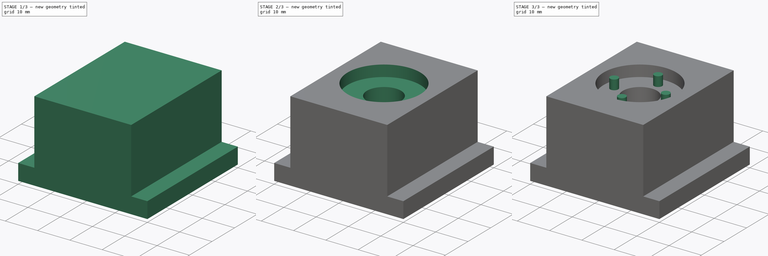
[diagram: build sequence overview — one tinted view per stage of 3, left to right]
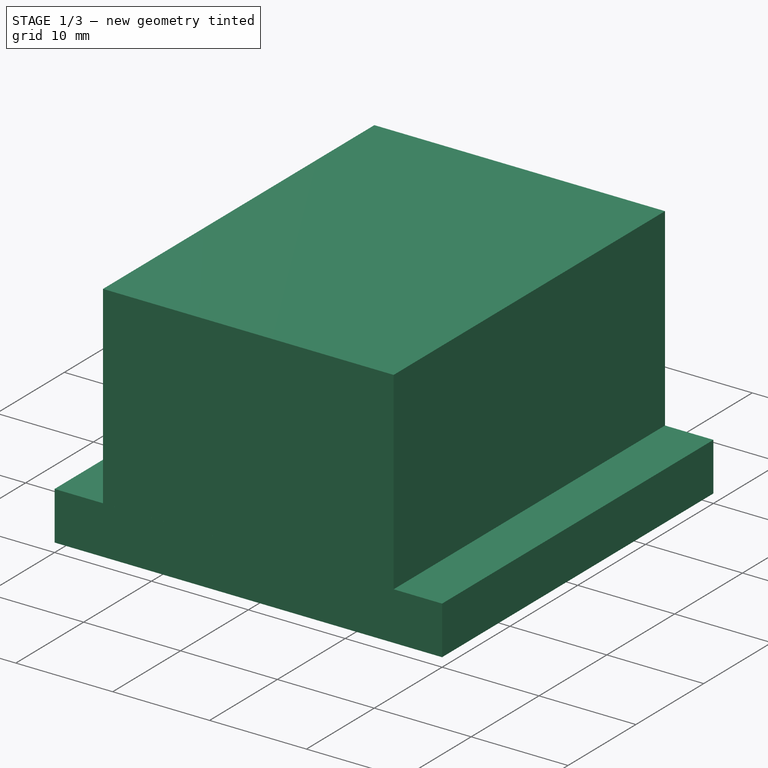
[diagram: stage 1 of 3 — iso view after this stage's code; geometry added in this stage tinted green]
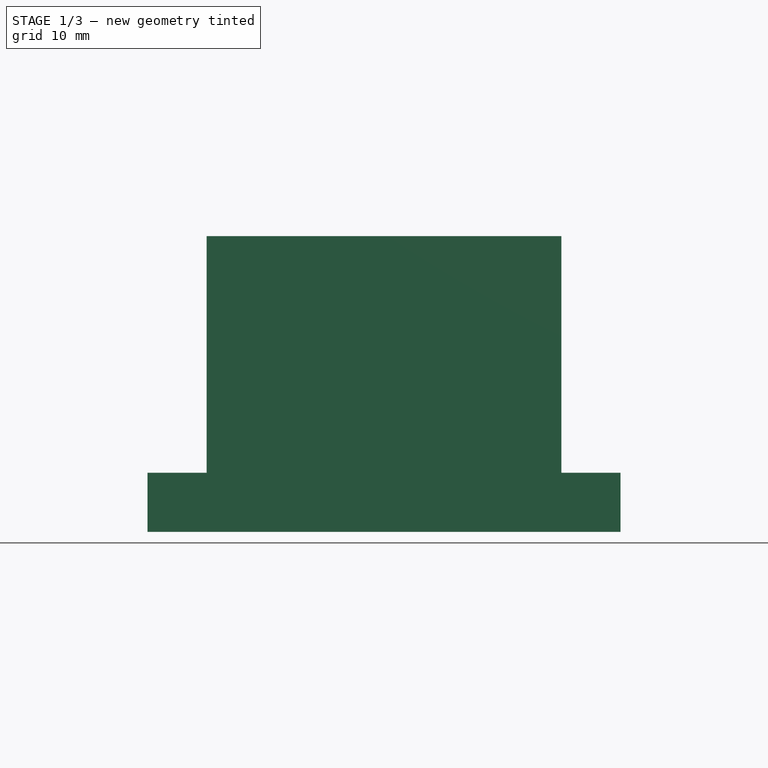
[diagram: stage 1 of 3 — front view after this stage's code; geometry added in this stage tinted green]
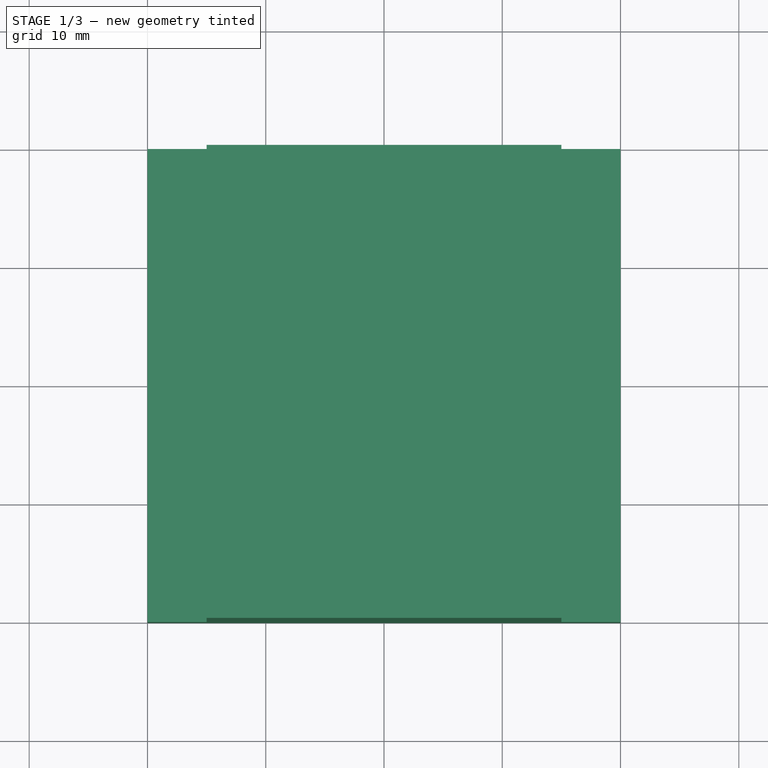
[diagram: stage 1 of 3 — top view after this stage's code; geometry added in this stage tinted green]
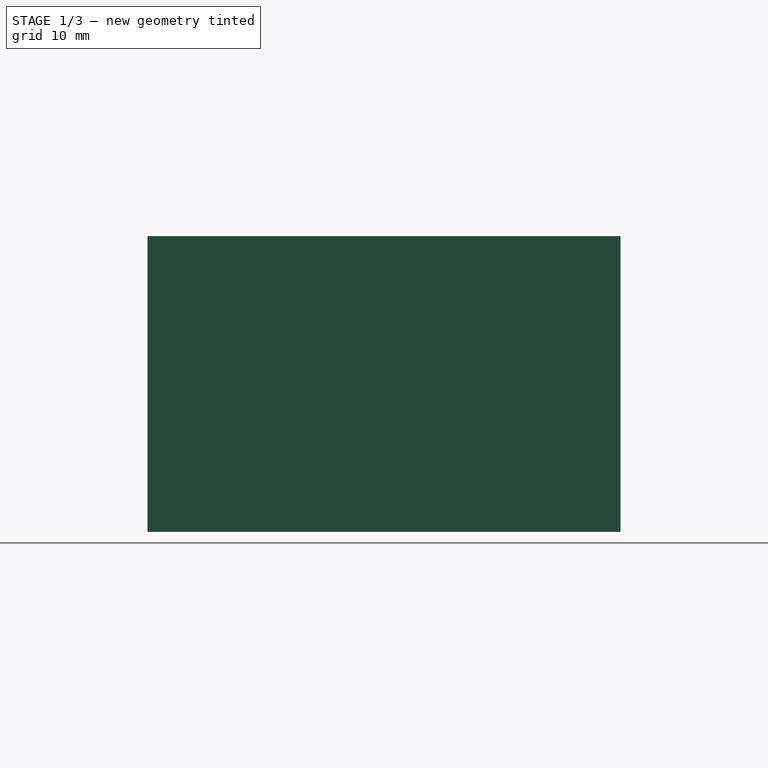
[diagram: stage 1 of 3 — right view after this stage's code; geometry added in this stage tinted green]
FCSTD DOCUMENT  (FreeCAD 0.14R3700 (Git))
Label: Z-Unibody
License: CC-BY 3.0
LicenseURL: http://creativecommons.org/licenses/by/3.0/
objects: Sketcher::SketchObject×4, PartDesign::Pocket×3, Part::Box×2, Part::Feature×2, Part::MultiFuse×1, PartDesign::Pad×1
note: 17 computed .brp shape members not serialized (recipe doc carries the construction recipe); baked Part::Feature solids carry a one-line shape summary decoded from their .brp

FEATURE [Part::Box] Box  label="Cubo"
  Height = 5
  Length = 40
  Width = 40
FEATURE [Part::Box] Box001  label="Cubo001"
  Height = 25
  Length = 30
  Placement = pos=(5,0,0) rot=(0,0,1;0rad)
  Width = 40
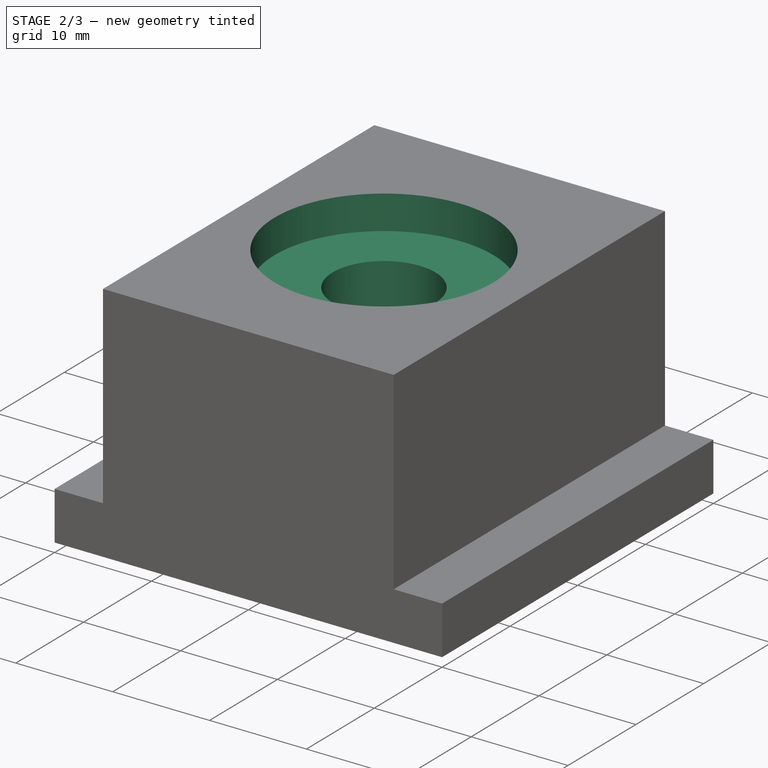
[diagram: stage 2 of 3 — iso view after this stage's code; geometry added in this stage tinted green]
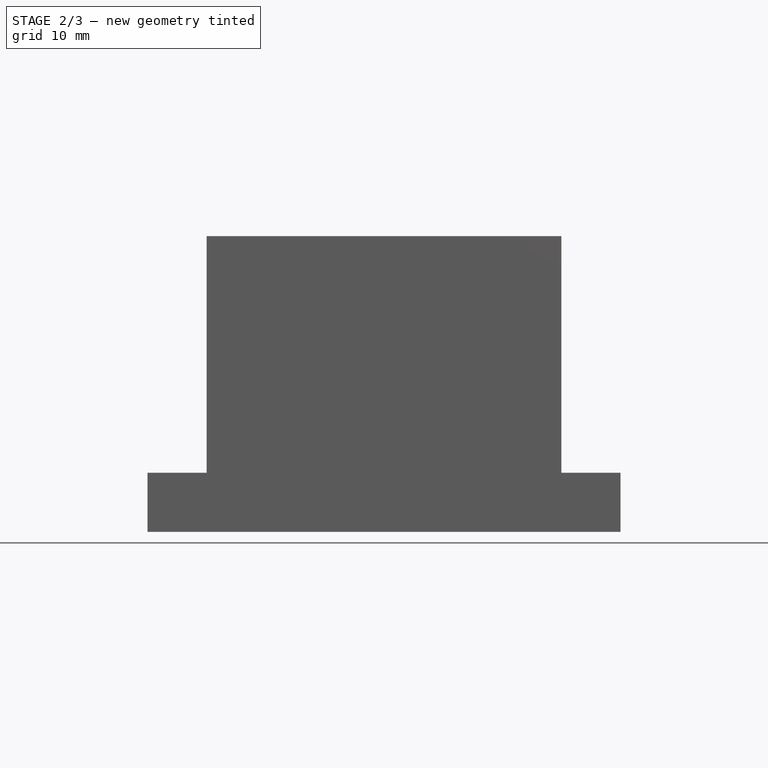
[diagram: stage 2 of 3 — front view after this stage's code; geometry added in this stage tinted green]
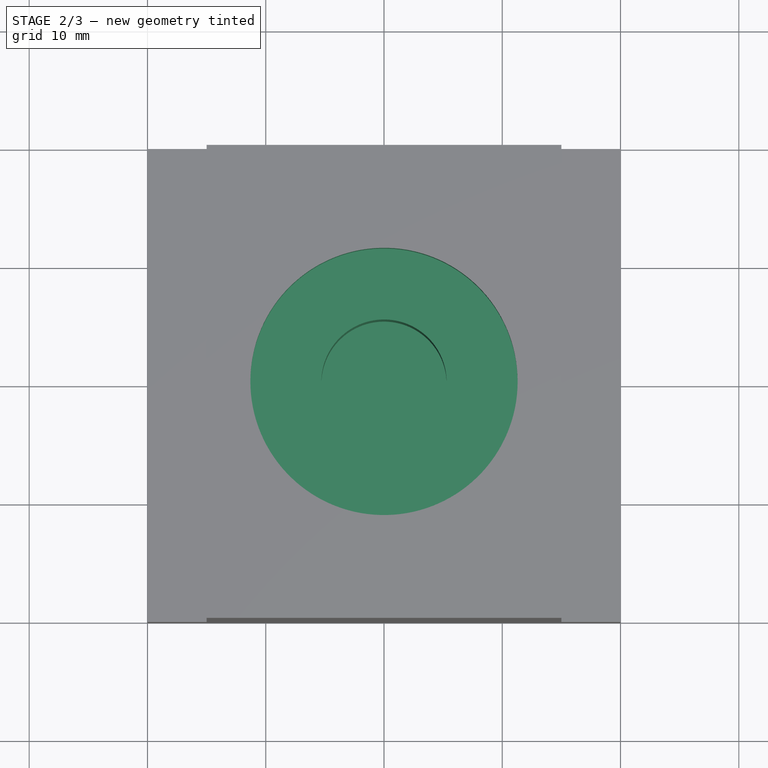
[diagram: stage 2 of 3 — top view after this stage's code; geometry added in this stage tinted green]
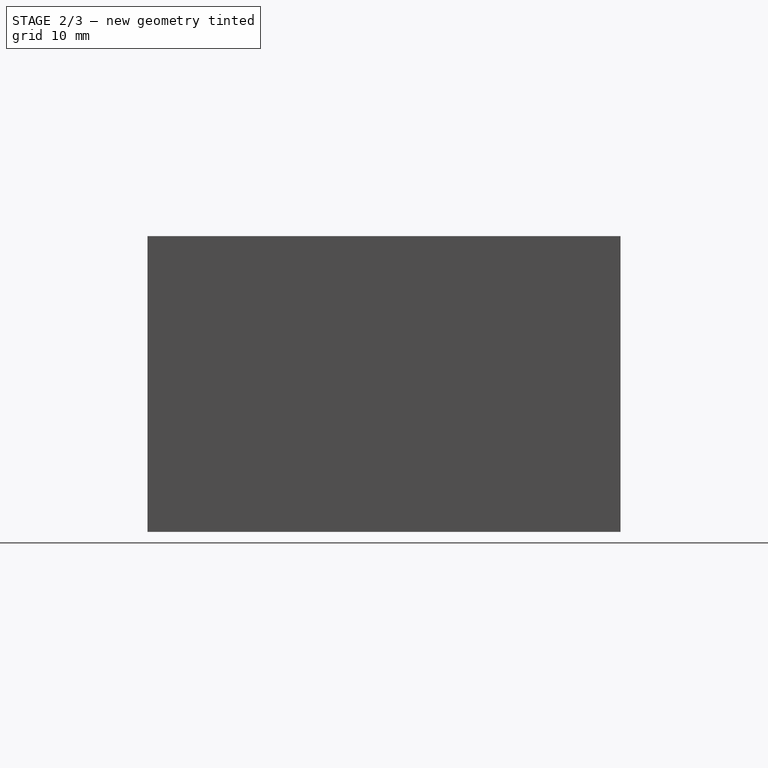
[diagram: stage 2 of 3 — right view after this stage's code; geometry added in this stage tinted green]
FEATURE [Part::Feature] Cut_solid  label="Tuerca-husillo (Solid)"
  Placement = pos=(20,20,21.6) rot=(0,0,1;0rad)
  shape: bbox 22 x 22 x 15 mm, 12 faces (baked)
FEATURE [Part::MultiFuse] Fusion
  Shapes = -> [Box,Box001]
FEATURE [Sketcher::SketchObject] Sketch002
  Placement = pos=(0,0,25) rot=(0,0,1;0rad)
  Support = -> Fusion [Face12]
  sketch-geometry (1):
    g0: Circle CenterX=20 CenterY=20 CenterZ=0 NormalX=0 NormalY=0 NormalZ=1 Radius=11.3
  constraints (1):
    c: Radius(g0) = 11.3
FEATURE [PartDesign::Pocket] Pocket
  Length = 3.5
  Sketch = -> Sketch002
  Type = 0
FEATURE [Sketcher::SketchObject] Sketch001
  Placement = pos=(0,0,21.5) rot=(0,0,1;0rad)
  Support = -> Pocket [Face20]
  sketch-geometry (1):
    g0: Circle CenterX=20 CenterY=20 CenterZ=0 NormalX=0 NormalY=0 NormalZ=1 Radius=5.3
  constraints (1):
    c: Radius(g0) = 5.3
FEATURE [PartDesign::Pocket] Pocket001
  Length = 10.5
  Sketch = -> Sketch001
  Type = 0
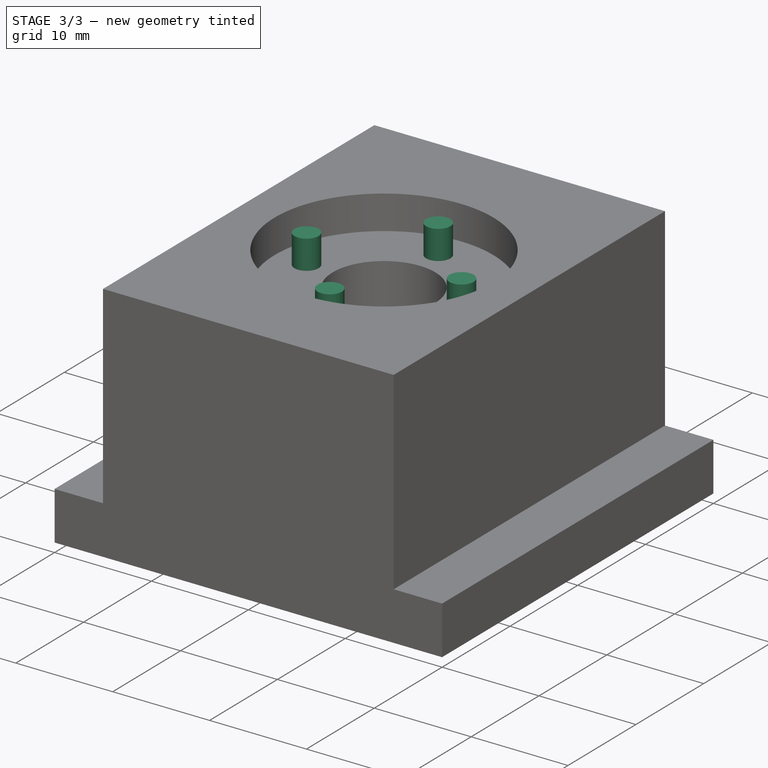
[diagram: stage 3 of 3 — iso view after this stage's code; geometry added in this stage tinted green]
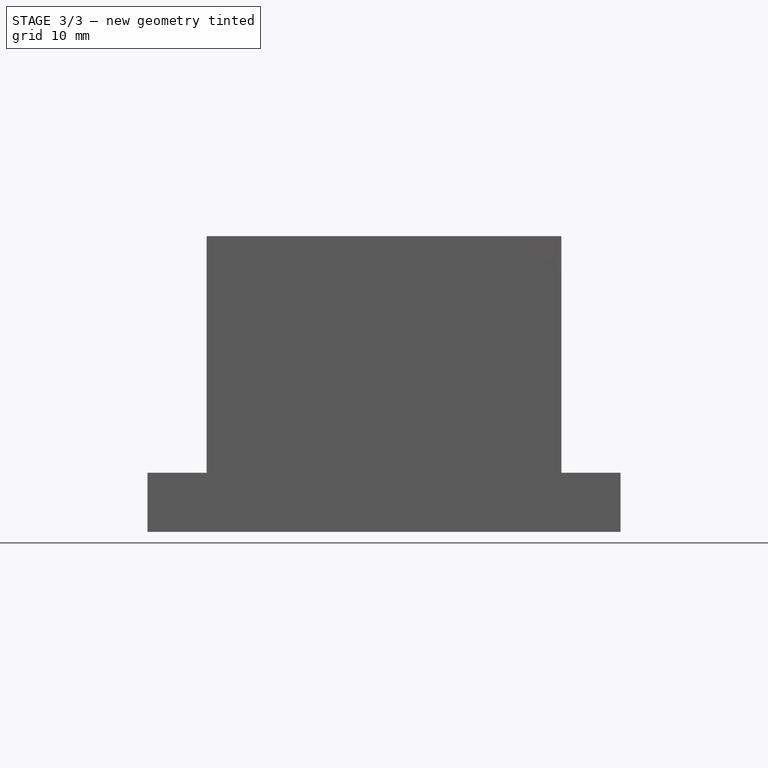
[diagram: stage 3 of 3 — front view after this stage's code; geometry added in this stage tinted green]
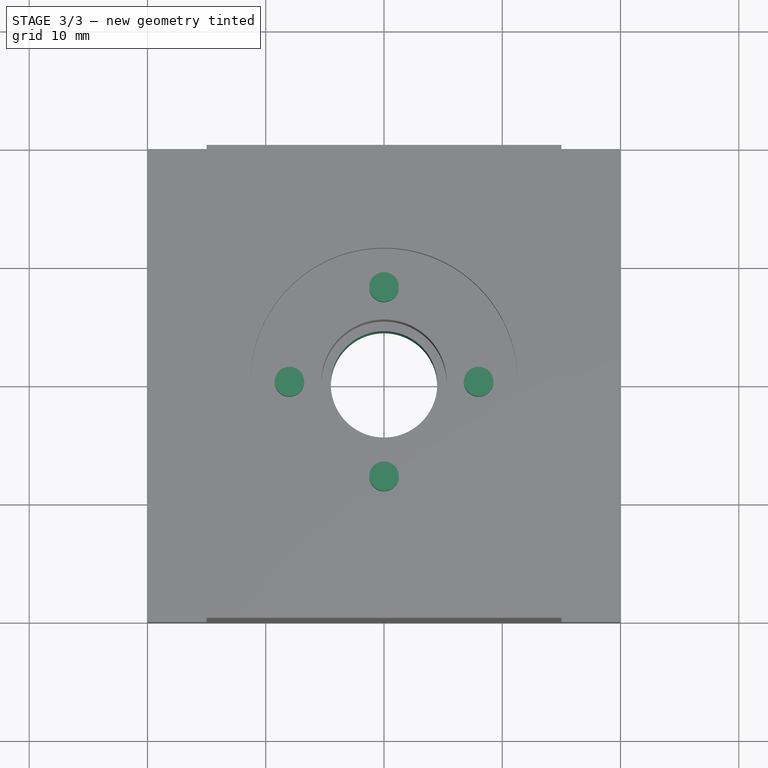
[diagram: stage 3 of 3 — top view after this stage's code; geometry added in this stage tinted green]
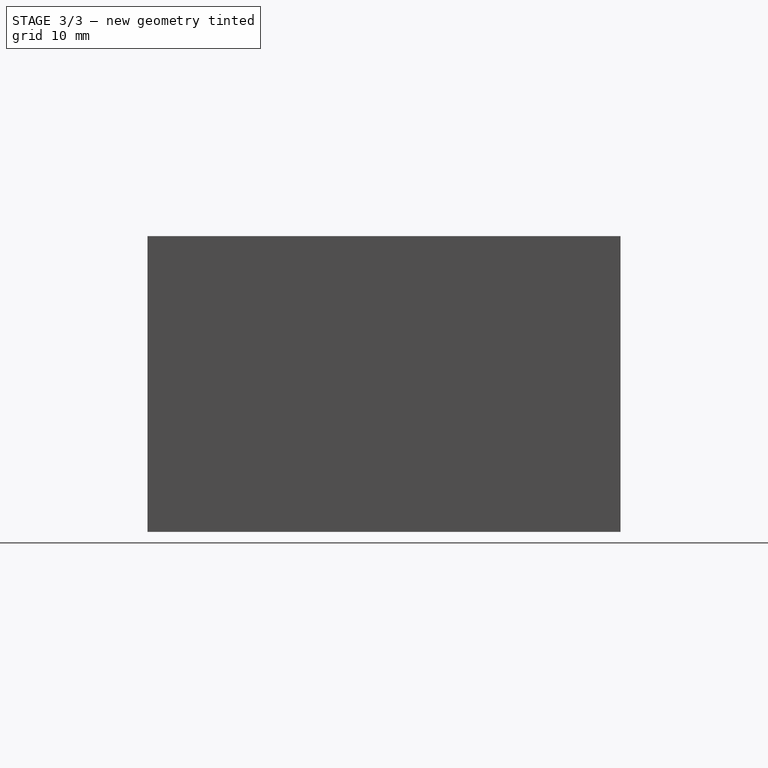
[diagram: stage 3 of 3 — right view after this stage's code; geometry added in this stage tinted green]
FEATURE [Sketcher::SketchObject] Sketch
  Placement = pos=(0,0,11) rot=(0,0,1;0rad)
  Support = -> Pocket001 [Face22]
  sketch-geometry (1):
    g0: Circle CenterX=20 CenterY=20 CenterZ=0 NormalX=0 NormalY=0 NormalZ=1 Radius=4.5
  constraints (1):
    c: Radius(g0) = 4.5
FEATURE [PartDesign::Pocket] Pocket002
  Length = 5
  Sketch = -> Sketch
  Type = 1
FEATURE [Sketcher::SketchObject] Sketch003
  Placement = pos=(0,0,21.5) rot=(0,0,1;0rad)
  Support = -> Pocket002 [Face22]
  sketch-geometry (4):
    g0: Circle CenterX=28 CenterY=20 CenterZ=0 NormalX=0 NormalY=0 NormalZ=1 Radius=1.25
    g1: Circle CenterX=20 CenterY=12 CenterZ=0 NormalX=0 NormalY=0 NormalZ=1 Radius=1.25
    g2: Circle CenterX=12 CenterY=20 CenterZ=0 NormalX=0 NormalY=0 NormalZ=1 Radius=1.25
    g3: Circle CenterX=20 CenterY=28 CenterZ=0 NormalX=0 NormalY=0 NormalZ=1 Radius=1.25
  constraints (4):
    c: Radius(g0) = 1.25
    c: Radius(g1) = 1.25
    c: Radius(g2) = 1.25
    c: Radius(g3) = 1.25
FEATURE [PartDesign::Pad] Pad
  Length = 3
  Length2 = 100
  Sketch = -> Sketch003
  Type = 0
FEATURE [Part::Feature] Pad001
  shape: bbox 40 x 40 x 25 mm, 23 faces (baked)
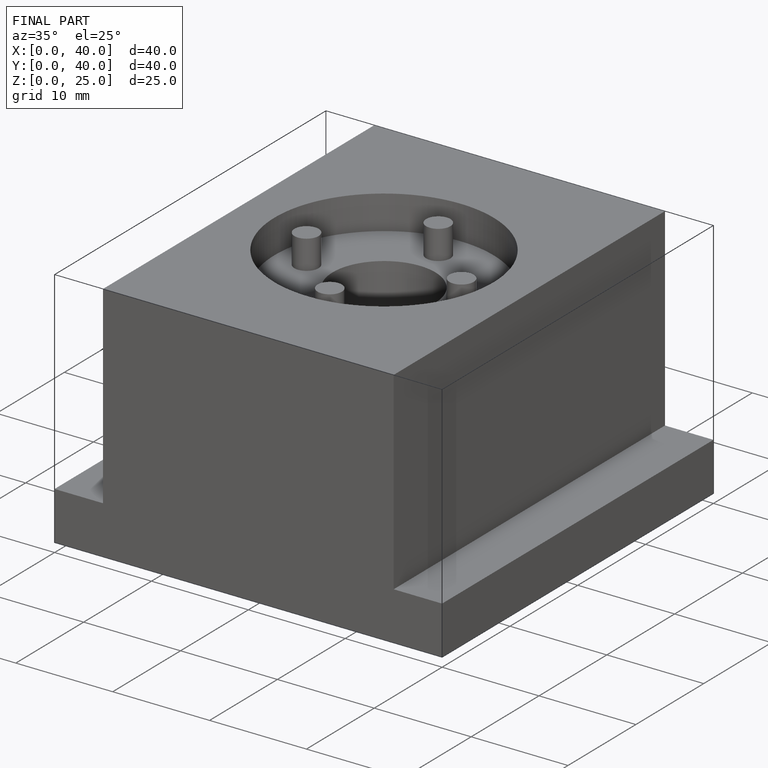
[diagram: finished part — iso view with bounding-box wireframe]
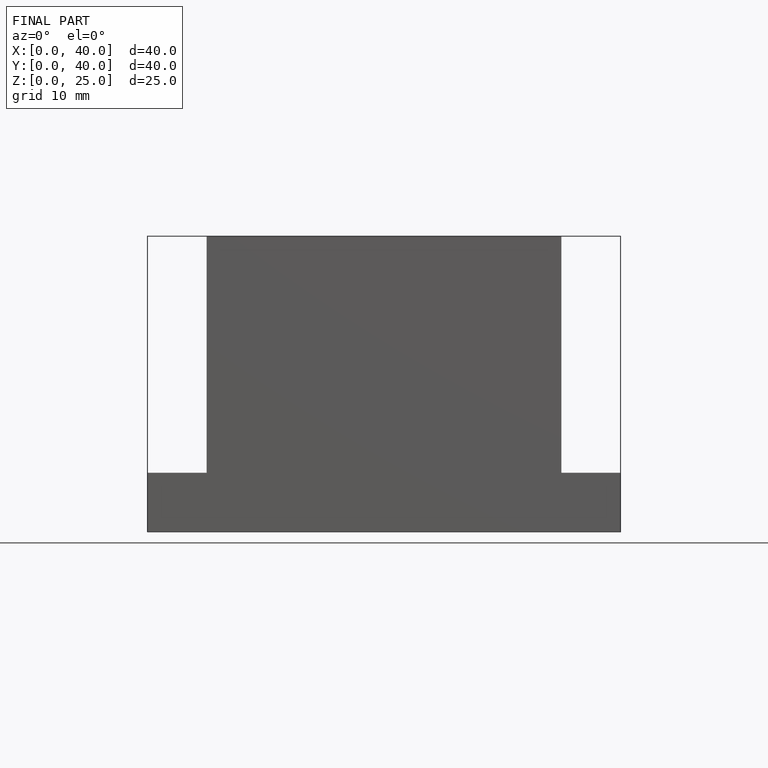
[diagram: finished part — front view with bounding-box wireframe]
